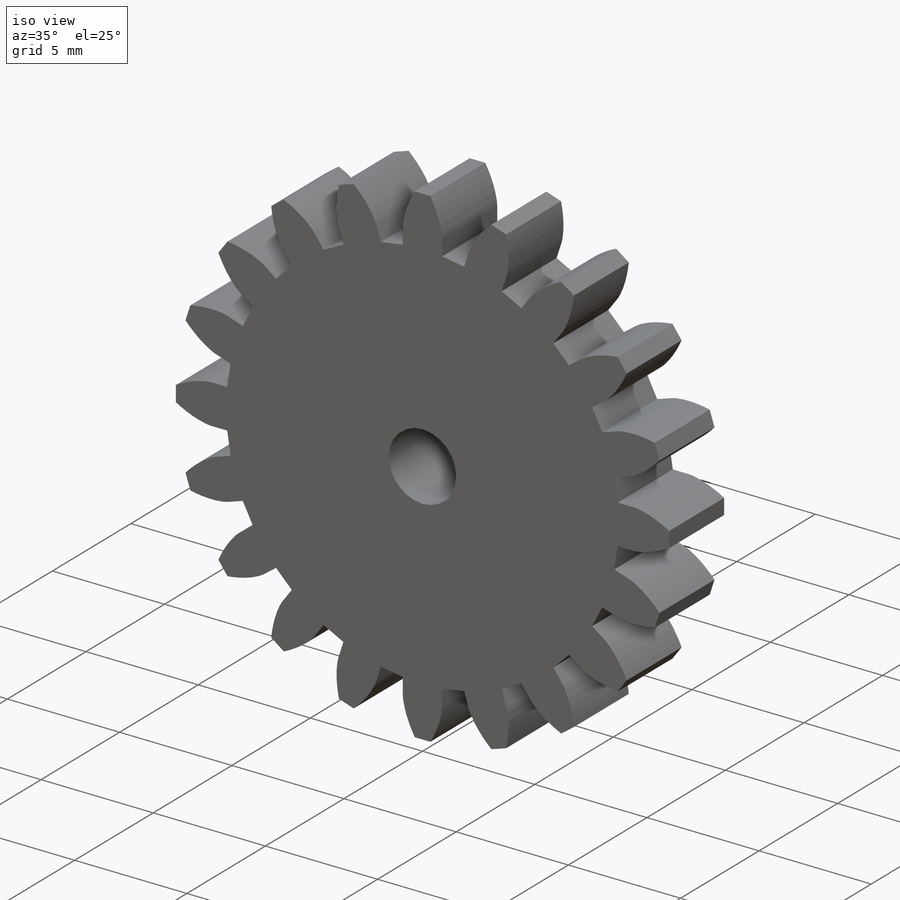
[diagram: iso view]
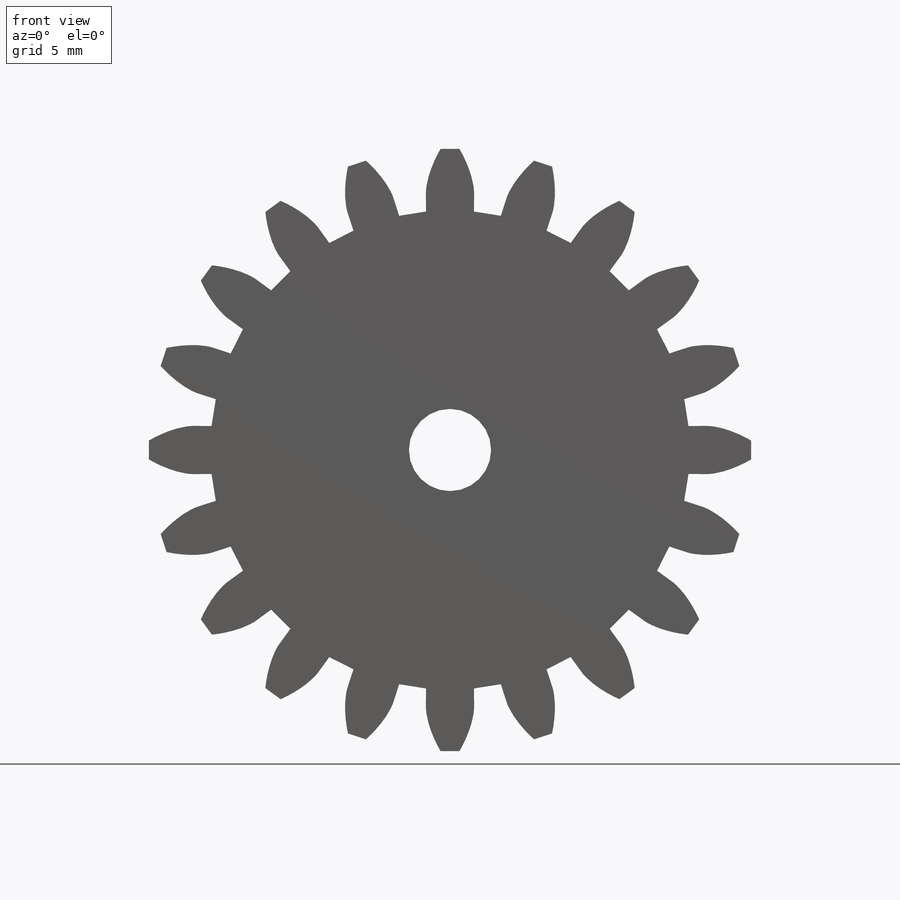
[diagram: front view]
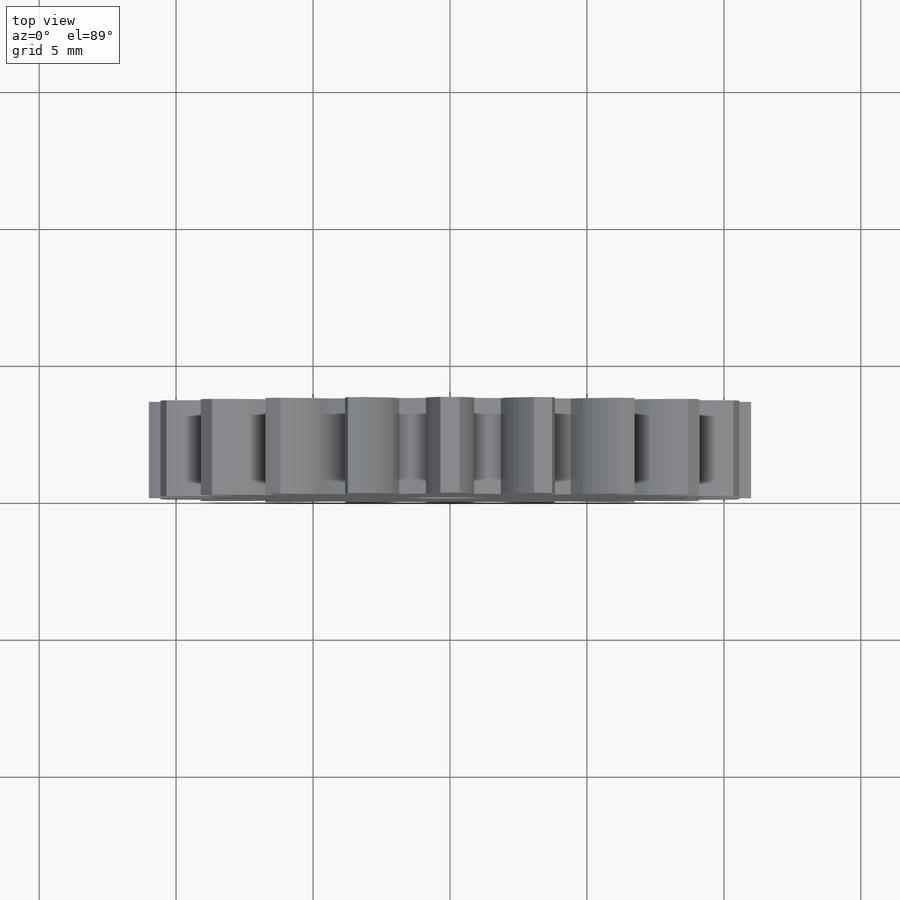
[diagram: top view]
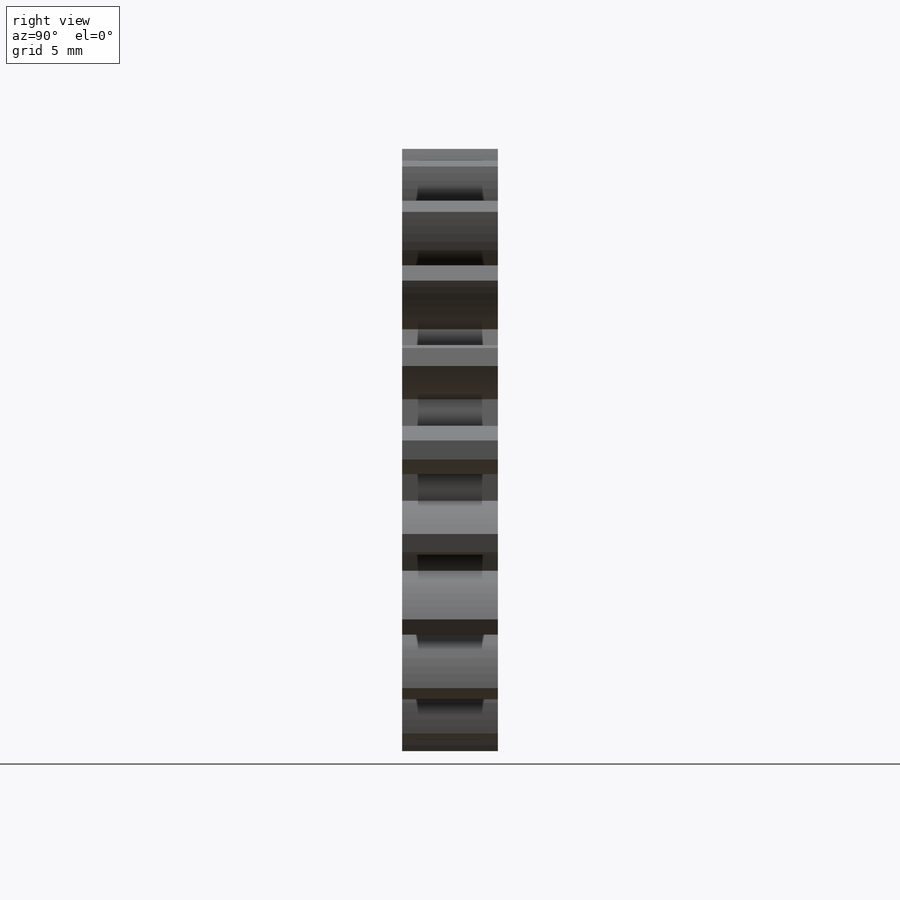
[diagram: right view]
SOLIDWORKS PART (.sldprt)
format: sldprt  version: not decoded by parser v0  size: 1,062,400 bytes
history: native  units: mm
features: extrude x404, sketch x403, material x1, plane x1 (+13 scaffold rows collapsed)
feature tree (822):
  scaffold x13  (default folders/planes/origin — collapsed)
  material  "Matériau <non spécifié>"
  plane  "Plan1"  Offset=10mm
  sketch  "Esquisse1"  dims[D1=~1.411727mm]
  extrude  "Boss.-Extru.1"  Depth=3.5mm flange_len_value=0
  extrude  "Associativity_IDs"  Depth=0 flange_len_value=0
  sketch  "13bbfd5e-1c11-48db-8718-c1169d628c41"
  extrude  "Associativity_IDs"  Depth=0 flange_len_value=0
  sketch  "54843a4e-a4ee-4462-ac54-c17025cd0bcd"
  extrude  "Associativity_IDs"  Depth=0 flange_len_value=0
  sketch  "c428674c-431b-4636-bc5d-d6e215f8b8be"
  extrude  "Associativity_IDs"  Depth=0 flange_len_value=0
  sketch  "61934696-606d-4d2c-a694-37e96e394700"
  extrude  "Associativity_IDs"  Depth=0 flange_len_value=0
  sketch  "9a402b78-d07b-43ad-a5d9-37352b821df1"
  extrude  "Associativity_IDs"  Depth=0 flange_len_value=0
  sketch  "4fa0fa68-a72b-4ed9-b020-85437230c592"
  extrude  "Associativity_IDs"  Depth=0 flange_len_value=0
  sketch  "2ccbed53-1972-4048-82f9-3eb8d1294805"
  extrude  "Associativity_IDs"  Depth=0 flange_len_value=0
  sketch  "2006a475-e6c8-4657-b828-d98f884e8f1a"
  extrude  "Associativity_IDs"  Depth=0 flange_len_value=0
  sketch  "390e4b35-3b0a-4961-8e1e-75f6a633a4c2"
  extrude  "Associativity_IDs"  Depth=0 flange_len_value=0
  sketch  "e2601f1a-ab28-4e0d-845e-cd70226b6478"
  extrude  "Associativity_IDs"  Depth=0 flange_len_value=0
  sketch  "31cf3b12-161c-4278-9735-86b6b50a0bc3"
  extrude  "Associativity_IDs"  Depth=0 flange_len_value=0
  sketch  "0d40f7db-7e08-4497-b2a4-90c7b92d5f4b"
  extrude  "Associativity_IDs"  Depth=0 flange_len_value=0
  sketch  "9fad24ba-4333-4fd7-aa1d-d40eca0dd601"
  extrude  "Associativity_IDs"  Depth=0 flange_len_value=0
  sketch  "5b74d7f9-2391-4663-bb7e-3f190af4a407"
  extrude  "Associativity_IDs"  Depth=0 flange_len_value=0
  sketch  "d1132328-059f-4d2f-ae51-18c9d13f0f56"
  extrude  "Associativity_IDs"  Depth=0 flange_len_value=0
  sketch  "74f930d1-b79d-489e-8cee-ef24b5be9e10"
  extrude  "Associativity_IDs"  Depth=0 flange_len_value=0
  sketch  "3770cc74-f9ef-4fb8-aa51-195a98be1d18"
  extrude  "Associativity_IDs"  Depth=0 flange_len_value=0
  sketch  "65fb81e8-5e94-4a8b-96c2-fe28cbc056b0"
  extrude  "Associativity_IDs"  Depth=0 flange_len_value=0
  sketch  "443fa2d3-6b46-4d5d-8011-d6a073cda6aa"
  extrude  "Associativity_IDs"  Depth=0 flange_len_value=0
  sketch  "80c3f443-d89e-479b-a112-7ea6c8e81a98"
  extrude  "Associativity_IDs"  Depth=0 flange_len_value=0
  sketch  "5f9c5b7b-5e79-4a73-bb68-b3a4ba7c9aa8"
  extrude  "Associativity_IDs"  Depth=0 flange_len_value=0
  sketch  "c0c77a51-e716-44fa-857a-7999544fc952"
  extrude  "Associativity_IDs"  Depth=0 flange_len_value=0
  sketch  "fb528331-1701-4a26-808d-e013704a3a03"
  extrude  "Associativity_IDs"  Depth=0 flange_len_value=0
  sketch  "b8583566-1acb-457a-b217-08901a0622e2"
  extrude  "Associativity_IDs"  Depth=0 flange_len_value=0
  sketch  "ca7a043a-130f-4d9b-bb3a-eff67f08fba7"
  extrude  "Associativity_IDs"  Depth=0 flange_len_value=0
  sketch  "128e19f4-7891-4e7b-980d-fa23868271dc"
  extrude  "Associativity_IDs"  Depth=0 flange_len_value=0
  sketch  "567f5583-8b94-45cb-94b6-b1453f7e88e4"
  extrude  "Associativity_IDs"  Depth=0 flange_len_value=0
  sketch  "21fc4a78-ca30-4545-86c6-ca785befb6d8"
  extrude  "Associativity_IDs"  Depth=0 flange_len_value=0
  sketch  "1d8a5f67-d9ef-44c7-bdc4-6580bfe56123"
  extrude  "Associativity_IDs"  Depth=0 flange_len_value=0
  sketch  "bd74414e-7255-4291-ae16-3037b33db959"
  extrude  "Associativity_IDs"  Depth=0 flange_len_value=0
  sketch  "b185f5cf-8d23-4686-b3cb-c78ee9cd1c8e"
  extrude  "Associativity_IDs"  Depth=0 flange_len_value=0
  sketch  "14f031cc-4b10-4389-a695-119ffb229a5d"
  extrude  "Associativity_IDs"  Depth=0 flange_len_value=0
  sketch  "7f53c3b7-2310-4031-8283-09fe5b6eb38d"
  extrude  "Associativity_IDs"  Depth=0 flange_len_value=0
  sketch  "9f361c8f-b567-4918-a093-dd841e98cb77"
  extrude  "Associativity_IDs"  Depth=0 flange_len_value=0
  sketch  "9bdad6c3-57ca-4a79-91c1-d036fb5aa1d5"
  extrude  "Associativity_IDs"  Depth=0 flange_len_value=0
  sketch  "e7cc4520-8017-4260-9284-a40a186c7c9d"
  extrude  "Associativity_IDs"  Depth=0 flange_len_value=0
  sketch  "7614929c-0179-4f60-94c4-f8c1b01e251c"
  extrude  "Associativity_IDs"  Depth=0 flange_len_value=0
  sketch  "04b82c00-530d-46ed-9c70-61cb452ceece"
  extrude  "Associativity_IDs"  Depth=0 flange_len_value=0
  sketch  "b9fe58a8-4e0c-4d21-9f91-59ce33ae0db9"
  extrude  "Associativity_IDs"  Depth=0 flange_len_value=0
  sketch  "2226aa6a-2db1-4148-affe-608344134f0a"
  extrude  "Associativity_IDs"  Depth=0 flange_len_value=0
  sketch  "40603316-857a-4821-b3e9-604746a215e4"
  extrude  "Associativity_IDs"  Depth=0 flange_len_value=0
  sketch  "869238ad-cbc1-4160-b578-5967dff6e92e"
  extrude  "Associativity_IDs"  Depth=0 flange_len_value=0
  sketch  "f72d0058-561f-4630-be80-ef5d83eb5c82"
  extrude  "Associativity_IDs"  Depth=0 flange_len_value=0
  sketch  "f3c8977c-7b07-4b28-b1c8-5306cc23b8ff"
  extrude  "Associativity_IDs"  Depth=0 flange_len_value=0
  sketch  "02060ea8-d797-4dd5-a156-c53dc0631bd7"
  extrude  "Associativity_IDs"  Depth=0 flange_len_value=0
  sketch  "75c880b2-f1d7-47bd-a8e1-1cd152465c6b"
  extrude  "Associativity_IDs"  Depth=0 flange_len_value=0
  sketch  "3a1e4f8a-6d50-425a-8b2e-8dc4230ccfa3"
  extrude  "Associativity_IDs"  Depth=0 flange_len_value=0
  sketch  "da325a01-0a72-427c-87f4-3e191b9fbf6a"
  extrude  "Associativity_IDs"  Depth=0 flange_len_value=0
  sketch  "9ccb399b-c086-4684-8f64-ac741b57f625"
  extrude  "Associativity_IDs"  Depth=0 flange_len_value=0
  sketch  "f0eb8b7b-d7da-4368-8b77-eb554a81c6a3"
  extrude  "Associativity_IDs"  Depth=0 flange_len_value=0
  sketch  "6748f85c-07fe-467b-aec7-041c1489ed51"
  extrude  "Associativity_IDs"  Depth=0 flange_len_value=0
  sketch  "e726c62f-8352-4fb2-a438-e02bf34169eb"
  extrude  "Associativity_IDs"  Depth=0 flange_len_value=0
  sketch  "adf0b155-c18f-4b0c-bb84-fdcec641aabc"
  extrude  "Associativity_IDs"  Depth=0 flange_len_value=0
  sketch  "9509f18d-a1a7-4cae-9622-ac0e9f269b9c"
  extrude  "Associativity_IDs"  Depth=0 flange_len_value=0
  sketch  "886a0c30-4ff6-44fb-a24b-66fcbdf866cb"
  extrude  "Associativity_IDs"  Depth=0 flange_len_value=0
  sketch  "59fc2e71-74c6-47e2-9891-6c9ba786784c"
  extrude  "Associativity_IDs"  Depth=0 flange_len_value=0
  sketch  "a57a9dbb-eb20-41cb-92c7-7b1aabf13602"
  extrude  "Associativity_IDs"  Depth=0 flange_len_value=0
  sketch  "2e67eae8-6c08-40ec-9072-8241424c93a5"
  extrude  "Associativity_IDs"  Depth=0 flange_len_value=0
  sketch  "d20805a7-5dc4-45d1-858d-49dc6495b3e7"
  extrude  "Associativity_IDs"  Depth=0 flange_len_value=0
  sketch  "b51fdf77-13db-44cc-b514-3f6eaadd06ae"
  extrude  "Associativity_IDs"  Depth=0 flange_len_value=0
  sketch  "5ae9d47f-2e01-429b-92e6-822714a03ce6"
  extrude  "Associativity_IDs"  Depth=0 flange_len_value=0
  sketch  "b852af76-6c05-4f41-b2b8-247c4e770056"
  extrude  "Associativity_IDs"  Depth=0 flange_len_value=0
  sketch  "a1190cab-cc4d-46b5-bb77-98ebfc1820b0"
  extrude  "Associativity_IDs"  Depth=0 flange_len_value=0
  sketch  "8368b22b-1381-45db-965a-c30bb0215107"
  extrude  "Associativity_IDs"  Depth=0 flange_len_value=0
  sketch  "09667097-dd84-4418-9303-39ba92a4a7d4"
  extrude  "Associativity_IDs"  Depth=0 flange_len_value=0
  sketch  "2752b990-15d4-4c57-8e7b-df8890272e97"
  extrude  "Associativity_IDs"  Depth=0 flange_len_value=0
  sketch  "1a481d65-f51e-4df3-bf60-9bae67cba510"
  extrude  "Associativity_IDs"  Depth=0 flange_len_value=0
  sketch  "ac7929ac-9a23-44f9-8e70-0cff7c1c4abe"
  extrude  "Associativity_IDs"  Depth=0 flange_len_value=0
  sketch  "95d60b06-e483-4041-a719-270af9fb80fd"
  extrude  "Associativity_IDs"  Depth=0 flange_len_value=0
  sketch  "2972bef5-7fce-40dc-af60-7a3cbf1c5cd8"
  extrude  "Associativity_IDs"  Depth=0 flange_len_value=0
  sketch  "deecd2e0-ce62-42ee-bd11-7743cb7fd468"
  extrude  "Associativity_IDs"  Depth=0 flange_len_value=0
  sketch  "28423f73-45ac-48c6-97e9-a69c50f25983"
  extrude  "Associativity_IDs"  Depth=0 flange_len_value=0
  sketch  "af0b67d2-4f93-4aaf-a2cf-7c397966a370"
  extrude  "Associativity_IDs"  Depth=0 flange_len_value=0
  sketch  "5f32a1a6-b4cf-43c0-8bfb-d1ef9458ab79"
  extrude  "Associativity_IDs"  Depth=0 flange_len_value=0
  sketch  "085342d1-e06c-4dce-84a2-395ca883fdae"
  extrude  "Associativity_IDs"  Depth=0 flange_len_value=0
  sketch  "30304cc2-a0a0-4446-8217-f6869271d9be"
  extrude  "Associativity_IDs"  Depth=0 flange_len_value=0
  sketch  "404a08cc-fc3f-46f0-90dc-acaa84c7e006"
  extrude  "Associativity_IDs"  Depth=0 flange_len_value=0
  sketch  "39dd0199-5000-4239-a6f7-8144b46573b1"
  extrude  "Associativity_IDs"  Depth=0 flange_len_value=0
  sketch  "c80aeb89-31a1-42fd-9c96-9b27ad7cd0e7"
  extrude  "Associativity_IDs"  Depth=0 flange_len_value=0
  sketch  "c1727292-ce8a-417b-968e-d15575c6cd6a"
  extrude  "Associativity_IDs"  Depth=0 flange_len_value=0
  sketch  "0377030b-7141-43a7-b3d3-a66a63aae028"
  extrude  "Associativity_IDs"  Depth=0 flange_len_value=0
  sketch  "d1fecf8b-98a9-4691-a399-6457c06ccc61"
  extrude  "Associativity_IDs"  Depth=0 flange_len_value=0
  sketch  "47a939ac-beb9-4eaa-9f5c-2c9dc74ebdc6"
  extrude  "Associativity_IDs"  Depth=0 flange_len_value=0
  sketch  "3c8d57a5-087f-488d-ab13-be084ec7630c"
  extrude  "Associativity_IDs"  Depth=0 flange_len_value=0
  sketch  "92383c12-da0f-4279-b547-dc5a0692ba63"
  extrude  "Associativity_IDs"  Depth=0 flange_len_value=0
  sketch  "e6bf6a43-e659-4317-af73-ed5da3d09b8f"
  extrude  "Associativity_IDs"  Depth=0 flange_len_value=0
  sketch  "7a78ca17-2998-4fc5-9d3e-3ceb6870701a"
  extrude  "Associativity_IDs"  Depth=0 flange_len_value=0
  sketch  "2871a1b6-a09b-432d-9cff-8ab6167d5893"
  extrude  "Associativity_IDs"  Depth=0 flange_len_value=0
  sketch  "e37605b2-6be1-4f6d-8770-653aae1dbfbd"
  extrude  "Associativity_IDs"  Depth=0 flange_len_value=0
  sketch  "95a6e20a-0f19-4b72-a5f6-3ce9f1ed01eb"
  extrude  "Associativity_IDs"  Depth=0 flange_len_value=0
  sketch  "bc845d8e-cd66-4eb9-8b79-a0767b665443"
  extrude  "Associativity_IDs"  Depth=0 flange_len_value=0
  sketch  "87afc9d4-5e97-40f6-91c4-d20492482601"
  extrude  "Associativity_IDs"  Depth=0 flange_len_value=0
  sketch  "5e4a5466-107d-4152-9b73-764478119abc"
  extrude  "Associativity_IDs"  Depth=0 flange_len_value=0
  sketch  "1040b12e-7723-4306-b61c-a6d0ff188b34"
  extrude  "Associativity_IDs"  Depth=0 flange_len_value=0
  sketch  "588b47fd-a4a1-47fe-a59a-cf2831546d66"
  extrude  "Associativity_IDs"  Depth=0 flange_len_value=0
  sketch  "246afd80-6786-436a-9c25-52bfe3730c97"
  extrude  "Associativity_IDs"  Depth=0 flange_len_value=0
  sketch  "13d67e29-97dc-4286-8372-8bef97ac1ae5"
  extrude  "Associativity_IDs"  Depth=0 flange_len_value=0
  sketch  "b0a6cc5d-09a9-4fc6-bde5-14439f8a8126"
  extrude  "Associativity_IDs"  Depth=0 flange_len_value=0
  sketch  "e3a0a4eb-2e6c-4541-9799-bf6f71a3e11b"
  extrude  "Associativity_IDs"  Depth=0 flange_len_value=0
  sketch  "b157a814-fe54-409d-8fe6-645fe4aab737"
  extrude  "Associativity_IDs"  Depth=0 flange_len_value=0
  sketch  "21fd3107-14bf-4171-a544-65bff5633e6b"
  extrude  "Associativity_IDs"  Depth=0 flange_len_value=0
  sketch  "c39f0877-7afa-4b2a-9699-7fb79a50f89b"
  extrude  "Associativity_IDs"  Depth=0 flange_len_value=0
  sketch  "683db9e5-c9d7-4712-b2de-0ddf33c721c4"
  extrude  "Associativity_IDs"  Depth=0 flange_len_value=0
  sketch  "4adb5f78-35b2-4b4c-9f99-684f10e44e89"
  extrude  "Associativity_IDs"  Depth=0 flange_len_value=0
  sketch  "db5ae26c-122b-4928-9a94-6996fe1fcdcd"
  extrude  "Associativity_IDs"  Depth=0 flange_len_value=0
  sketch  "ca0c82c2-78c4-431b-9c72-93072130bcdc"
  extrude  "Associativity_IDs"  Depth=0 flange_len_value=0
  sketch  "d2841bf6-23f4-41c3-8a3b-528290ce708b"
  extrude  "Associativity_IDs"  Depth=0 flange_len_value=0
  sketch  "0b15edc0-6b85-4090-80ae-9c75e6d4b823"
  extrude  "Associativity_IDs"  Depth=0 flange_len_value=0
  sketch  "2a5dcdff-79ba-4178-9169-0944900dd8bd"
  extrude  "Associativity_IDs"  Depth=0 flange_len_value=0
  sketch  "1a4cf7be-0301-4439-89d7-c4f0c709cf30"
  extrude  "Associativity_IDs"  Depth=0 flange_len_value=0
  sketch  "5809ba24-18f4-48ac-b003-6a67b45a8802"
  extrude  "Associativity_IDs"  Depth=0 flange_len_value=0
  sketch  "fcc17877-6a85-4b91-894c-e7a200327e9e"
  extrude  "Associativity_IDs"  Depth=0 flange_len_value=0
  sketch  "98a45cad-ff88-4aaa-8d6d-b5ef514be227"
  extrude  "Associativity_IDs"  Depth=0 flange_len_value=0
  sketch  "c891f8db-9d53-4d6e-b8bc-851c4c83c90a"
  extrude  "Associativity_IDs"  Depth=0 flange_len_value=0
  sketch  "f41632ce-0b52-43c0-b952-0530a40d5c95"
  extrude  "Associativity_IDs"  Depth=0 flange_len_value=0
  sketch  "0d6284e5-e6a2-4c9c-9df3-cfa69e90a16b"
  extrude  "Associativity_IDs"  Depth=0 flange_len_value=0
  sketch  "56ac1702-4682-426b-b137-3db46a4590da"
  extrude  "Associativity_IDs"  Depth=0 flange_len_value=0
  sketch  "390bb164-aa40-4cfc-9a13-6f20865258fc"
  extrude  "Associativity_IDs"  Depth=0 flange_len_value=0
  sketch  "c5cf8c12-49f2-423d-9e8e-0135d1ec1cc7"
  extrude  "Associativity_IDs"  Depth=0 flange_len_value=0
  sketch  "a0bdb193-aa38-42d8-b037-ab99227ebb81"
  extrude  "Associativity_IDs"  Depth=0 flange_len_value=0
  sketch  "c1f670e6-2869-4373-a7e0-bf9e4f36643e"
  extrude  "Associativity_IDs"  Depth=0 flange_len_value=0
  sketch  "4cba8258-bb2c-4904-83aa-a30266801a5f"
  extrude  "Associativity_IDs"  Depth=0 flange_len_value=0
  sketch  "ba71c5be-7075-434f-8e1c-102aa3972de5"
  extrude  "Associativity_IDs"  Depth=0 flange_len_value=0
  sketch  "90a8a39f-c8a8-4d53-a171-a511f778796d"
  extrude  "Associativity_IDs"  Depth=0 flange_len_value=0
  sketch  "84ef544b-ab82-44a8-8782-656ce1fa0262"
  extrude  "Associativity_IDs"  Depth=0 flange_len_value=0
  sketch  "adc4f310-8ddc-45c8-9fd4-7dd7ce50c8d9"
  extrude  "Associativity_IDs"  Depth=0 flange_len_value=0
  sketch  "7d03dc18-cc77-4dcd-a0a5-284783379cee"
  extrude  "Associativity_IDs"  Depth=0 flange_len_value=0
  sketch  "6df3e851-ccfa-4638-922a-c4f402dfbb58"
  extrude  "Associativity_IDs"  Depth=0 flange_len_value=0
  sketch  "8fde5954-d9b1-499c-b025-c5ca97c7f49b"
  extrude  "Associativity_IDs"  Depth=0 flange_len_value=0
  sketch  "de8ed576-839a-42f2-b684-d2c4a4b4ae9d"
  extrude  "Associativity_IDs"  Depth=0 flange_len_value=0
  sketch  "fb2d7013-1dcb-4ed6-8f2b-be93e11e504f"
  extrude  "Associativity_IDs"  Depth=0 flange_len_value=0
  sketch  "2c2ad079-68b0-470b-8a48-e29f7536bddf"
  extrude  "Associativity_IDs"  Depth=0 flange_len_value=0
  sketch  "157b9c0e-0772-4cb0-a299-3dfbc8c53e08"
  extrude  "Associativity_IDs"  Depth=0 flange_len_value=0
  sketch  "df09da99-40e6-4e78-9f0d-4dec78924127"
  extrude  "Associativity_IDs"  Depth=0 flange_len_value=0
  sketch  "d36342f3-60da-4a32-bb24-1b669f65f3a8"
  extrude  "Associativity_IDs"  Depth=0 flange_len_value=0
  sketch  "f12f2cd9-a26b-47b6-87bf-de05bca9ac81"
  extrude  "Associativity_IDs"  Depth=0 flange_len_value=0
  sketch  "0fa2a451-da85-4ac5-b453-df22c7fe1ebb"
  extrude  "Associativity_IDs"  Depth=0 flange_len_value=0
  sketch  "f48c41e9-9787-429f-856b-55749375deda"
  extrude  "Associativity_IDs"  Depth=0 flange_len_value=0
  sketch  "fec7c54a-7720-4b0a-8649-633334c33206"
  extrude  "Associativity_IDs"  Depth=0 flange_len_value=0
  sketch  "a9d6b662-6262-4a37-b70e-a452f0472a14"
  extrude  "Associativity_IDs"  Depth=0 flange_len_value=0
  sketch  "b0e5e479-20ba-4340-b0c4-eb6310732ae6"
  extrude  "Associativity_IDs"  Depth=0 flange_len_value=0
  sketch  "40d3ec11-5257-4972-ba9a-944891b213b7"
  extrude  "Associativity_IDs"  Depth=0 flange_len_value=0
  sketch  "62a14a11-98a3-4c0c-998c-554dcc35a136"
  extrude  "Associativity_IDs"  Depth=0 flange_len_value=0
  sketch  "49eb0462-568b-4d36-8cd2-3302b1a7bafe"
  extrude  "Associativity_IDs"  Depth=0 flange_len_value=0
  sketch  "f354510a-2dd4-4429-acbf-913a4fc6c8aa"
  extrude  "Associativity_IDs"  Depth=0 flange_len_value=0
  sketch  "b1e363d8-c2d9-468e-acd3-aed4a464cb3d"
  extrude  "Associativity_IDs"  Depth=0 flange_len_value=0
  sketch  "f4d72384-5d58-4252-95c0-baa647a4fadd"
  extrude  "Associativity_IDs"  Depth=0 flange_len_value=0
  sketch  "227e4169-d54f-48fb-bdf4-17325315aa96"
  extrude  "Associativity_IDs"  Depth=0 flange_len_value=0
  sketch  "ede742eb-547b-4bce-90e9-20c470e614b1"
  extrude  "Associativity_IDs"  Depth=0 flange_len_value=0
  sketch  "e8c2fdd0-91e9-48d3-b401-71abc8cea4d2"
  extrude  "Associativity_IDs"  Depth=0 flange_len_value=0
  sketch  "362ff95b-0e27-4082-8a82-fbcfa834db38"
  extrude  "Associativity_IDs"  Depth=0 flange_len_value=0
  sketch  "1ce4a428-45a6-4fa2-96de-48870f0c16fe"
  extrude  "Associativity_IDs"  Depth=0 flange_len_value=0
  sketch  "361191d8-d7bf-467d-b63e-7d49e591adcf"
  extrude  "Associativity_IDs"  Depth=0 flange_len_value=0
  sketch  "c095669d-0a95-4a17-98b4-e89e17a1f963"
  extrude  "Associativity_IDs"  Depth=0 flange_len_value=0
  sketch  "657d9788-8e3f-45b5-8471-72f2ab288839"
  extrude  "Associativity_IDs"  Depth=0 flange_len_value=0
  sketch  "ed63c311-fc88-40a5-95fe-b074a39c3560"
  extrude  "Associativity_IDs"  Depth=0 flange_len_value=0
  sketch  "de6314dd-733b-45b2-b1bc-0652a701f1e7"
  extrude  "Associativity_IDs"  Depth=0 flange_len_value=0
  sketch  "c8d7496b-ccf1-47b0-93e7-d9bd70695eed"
  extrude  "Associativity_IDs"  Depth=0 flange_len_value=0
  sketch  "492feb47-b700-4941-948d-ca943e264170"
  extrude  "Associativity_IDs"  Depth=0 flange_len_value=0
  sketch  "6eea0d81-ee12-48b3-84d0-89519a3702d0"
  extrude  "Associativity_IDs"  Depth=0 flange_len_value=0
  sketch  "c80faa77-da46-4e2e-8e86-3a270b1a9486"
  extrude  "Associativity_IDs"  Depth=0 flange_len_value=0
  sketch  "6fa20124-347e-4e46-8467-1e4e1a067e61"
  extrude  "Associativity_IDs"  Depth=0 flange_len_value=0
  sketch  "b708db0b-a237-4992-a8f2-8696752d370c"
  extrude  "Associativity_IDs"  Depth=0 flange_len_value=0
  sketch  "209b2fc9-12a3-4a95-a596-d8a52d7f1898"
  extrude  "Associativity_IDs"  Depth=0 flange_len_value=0
  sketch  "fa132fbe-cea7-4ae7-838f-a72095247370"
  extrude  "Associativity_IDs"  Depth=0 flange_len_value=0
  sketch  "a85ab6e2-e524-40eb-888a-e8b537130ffa"
  extrude  "Associativity_IDs"  Depth=0 flange_len_value=0
  sketch  "d28d1997-fbb0-46c1-b20b-086517d46671"
  extrude  "Associativity_IDs"  Depth=0 flange_len_value=0
  sketch  "66136db7-7a29-4c41-a6a2-4fed72d3467f"
  extrude  "Associativity_IDs"  Depth=0 flange_len_value=0
  sketch  "7659ecce-0442-4626-b7fb-773b3b5300a2"
  extrude  "Associativity_IDs"  Depth=0 flange_len_value=0
  sketch  "4206a055-4587-438e-8a09-e7034ed5e4f7"
  extrude  "Associativity_IDs"  Depth=0 flange_len_value=0
  sketch  "d1b58599-5e35-43f1-9334-4c181c6f528f"
  extrude  "Associativity_IDs"  Depth=0 flange_len_value=0
  sketch  "e5dcdce7-8836-4c54-8266-51d79b76fd2e"
  extrude  "Associativity_IDs"  Depth=0 flange_len_value=0
  sketch  "79d52816-b6cc-4d0e-be0d-641bdcebaf55"
  extrude  "Associativity_IDs"  Depth=0 flange_len_value=0
  sketch  "a38eb546-152c-487f-94cf-37588815d74a"
  extrude  "Associativity_IDs"  Depth=0 flange_len_value=0
  sketch  "01723922-f185-4c18-88dd-7a607cc90bcc"
  extrude  "Associativity_IDs"  Depth=0 flange_len_value=0
  sketch  "aac79258-807e-47fc-b764-618c4d633e84"
  extrude  "Associativity_IDs"  Depth=0 flange_len_value=0
  sketch  "617796e1-2f19-4dd1-ac92-5a44786957f5"
  extrude  "Associativity_IDs"  Depth=0 flange_len_value=0
  sketch  "acbb7d85-1ab0-4a2f-b4dc-f5b11c57c3aa"
  extrude  "Associativity_IDs"  Depth=0 flange_len_value=0
  sketch  "68c1893c-3419-4c22-b796-0e0c3794f4db"
  extrude  "Associativity_IDs"  Depth=0 flange_len_value=0
  sketch  "66686deb-324c-470b-9959-7abc4ee96e53"
  extrude  "Associativity_IDs"  Depth=0 flange_len_value=0
  sketch  "d347e5d4-647b-4803-9fcf-dfc3b3b78da3"
  extrude  "Associativity_IDs"  Depth=0 flange_len_value=0
  sketch  "7bdbec13-14c5-461f-97c4-91db60dd7eb3"
  extrude  "Associativity_IDs"  Depth=0 flange_len_value=0
  sketch  "6ec812e8-1586-457b-8021-0a78bbcdbeaf"
  extrude  "Associativity_IDs"  Depth=0 flange_len_value=0
  sketch  "9d554461-5023-4216-be6a-5ce003292b56"
  extrude  "Associativity_IDs"  Depth=0 flange_len_value=0
  sketch  "3b9e8c65-4669-44f3-b08f-6ed24ffecd32"
  extrude  "Associativity_IDs"  Depth=0 flange_len_value=0
  sketch  "2a8dff92-7c88-4317-bd3c-8a3bcd2a8c0a"
  extrude  "Associativity_IDs"  Depth=0 flange_len_value=0
  sketch  "f8228783-e10f-4862-85fb-f2198046b9b9"
  extrude  "Associativity_IDs"  Depth=0 flange_len_value=0
  sketch  "6e8ba274-c0e6-45b0-a6ac-13b5cc3c11c5"
  extrude  "Associativity_IDs"  Depth=0 flange_len_value=0
  sketch  "9dcdeb0a-a518-4157-895b-5ed243822702"
  extrude  "Associativity_IDs"  Depth=0 flange_len_value=0
  sketch  "1d7b6d60-ec4b-4262-95b5-cfb621f57034"
  extrude  "Associativity_IDs"  Depth=0 flange_len_value=0
  sketch  "0238d686-9a0e-4879-ad4c-385f11036f9a"
  extrude  "Associativity_IDs"  Depth=0 flange_len_value=0
  sketch  "b779e963-ba10-419e-87d3-b039d1614431"
  extrude  "Associativity_IDs"  Depth=0 flange_len_value=0
  sketch  "9258934f-19d3-4465-a5ca-fd7d30255fd4"
  extrude  "Associativity_IDs"  Depth=0 flange_len_value=0
  sketch  "395c5d90-8373-4b81-8b4a-053255d491b3"
  extrude  "Associativity_IDs"  Depth=0 flange_len_value=0
  sketch  "4ed72fe8-c02a-4b14-bacb-6c9b1d25749e"
  extrude  "Associativity_IDs"  Depth=0 flange_len_value=0
  sketch  "02a90a86-a43e-4dd0-bd6d-c462a77a7ffc"
  extrude  "Associativity_IDs"  Depth=0 flange_len_value=0
  sketch  "c961d56f-897e-4bda-bdc6-c011f54d3a6d"
  extrude  "Associativity_IDs"  Depth=0 flange_len_value=0
  sketch  "e19c2904-154b-4119-ae78-4a5c937aa41b"
  extrude  "Associativity_IDs"  Depth=0 flange_len_value=0
  sketch  "4ed53e45-1a5b-48fe-a3ba-c5b1ae4aaed4"
  extrude  "Associativity_IDs"  Depth=0 flange_len_value=0
  sketch  "e6574a88-ceed-4a24-b2b5-e2a67102542c"
  extrude  "Associativity_IDs"  Depth=0 flange_len_value=0
  sketch  "68e7ba51-0a75-485a-bb0b-ead7988deabe"
  extrude  "Associativity_IDs"  Depth=0 flange_len_value=0
  sketch  "c70b64dd-e4e8-4d28-b02c-ee15dba12ead"
  extrude  "Associativity_IDs"  Depth=0 flange_len_value=0
  sketch  "2406a9c7-4dac-4d5b-b04d-cd188cab344b"
  extrude  "Associativity_IDs"  Depth=0 flange_len_value=0
  sketch  "952aa416-9a1f-4c9f-b65a-315c7a911e0c"
  extrude  "Associativity_IDs"  Depth=0 flange_len_value=0
  sketch  "3455c0c8-4155-4c8d-b328-f2d8cebd03e9"
  extrude  "Associativity_IDs"  Depth=0 flange_len_value=0
  sketch  "17c6cf8c-d3ec-439c-bac6-3b0084ae6c37"
  extrude  "Associativity_IDs"  Depth=0 flange_len_value=0
  sketch  "45fd3642-a877-4255-88f1-3d3b9be4b2a9"
  extrude  "Associativity_IDs"  Depth=0 flange_len_value=0
  sketch  "2aa8eb41-f15f-46d3-b231-3849d8dfe837"
  extrude  "Associativity_IDs"  Depth=0 flange_len_value=0
  sketch  "51b92f0f-5ceb-415f-b7a8-5ca87b7f433c"
  extrude  "Associativity_IDs"  Depth=0 flange_len_value=0
  sketch  "63e5fe05-e8b6-48cd-9573-9f040ffe5db6"
  extrude  "Associativity_IDs"  Depth=0 flange_len_value=0
  sketch  "7198e7a9-df64-418d-bc22-33c4594d0a77"
  extrude  "Associativity_IDs"  Depth=0 flange_len_value=0
  sketch  "09381090-500f-4737-aadd-ec7f73590803"
  extrude  "Associativity_IDs"  Depth=0 flange_len_value=0
  sketch  "95d7ec6c-3eb2-42d0-a78b-6811e7fceb3d"
  extrude  "Associativity_IDs"  Depth=0 flange_len_value=0
  sketch  "c01a2a18-4106-4f4c-9e08-23fc161d5b0e"
  extrude  "Associativity_IDs"  Depth=0 flange_len_value=0
  sketch  "3bb51986-0f6b-4d21-b5fe-ff0d4ba19a3e"
  extrude  "Associativity_IDs"  Depth=0 flange_len_value=0
  sketch  "a4e48260-7dc4-464e-ba53-dab83ef0bf85"
  extrude  "Associativity_IDs"  Depth=0 flange_len_value=0
  sketch  "cf29b0a0-b9ef-448c-8002-01fca0d4c65a"
  extrude  "Associativity_IDs"  Depth=0 flange_len_value=0
  sketch  "732ff070-8d41-4f9d-957c-4dd91e4747aa"
  extrude  "Associativity_IDs"  Depth=0 flange_len_value=0
  sketch  "d7fc5871-669f-4115-ae6b-0bfd71726f12"
  extrude  "Associativity_IDs"  Depth=0 flange_len_value=0
  sketch  "e587ba20-6e5d-4cba-897e-63b92559aeff"
  extrude  "Associativity_IDs"  Depth=0 flange_len_value=0
  sketch  "f7f3f19d-f700-4184-b78f-8851ad558636"
  extrude  "Associativity_IDs"  Depth=0 flange_len_value=0
  sketch  "65b77d82-b0c6-4ed6-bd08-40033caba849"
  extrude  "Associativity_IDs"  Depth=0 flange_len_value=0
  sketch  "4e8af007-58c6-49cf-baf2-c8f46dc7637d"
  extrude  "Associativity_IDs"  Depth=0 flange_len_value=0
  sketch  "444be792-4ae0-458a-a31a-b78c03ae5b3b"
  extrude  "Associativity_IDs"  Depth=0 flange_len_value=0
  sketch  "7b3450ae-0697-4f42-8acf-e5614dcb12b0"
  extrude  "Associativity_IDs"  Depth=0 flange_len_value=0
  sketch  "4d993bb4-6209-45e3-a447-ab04e17b5173"
  extrude  "Associativity_IDs"  Depth=0 flange_len_value=0
  sketch  "2311a2da-27b0-4431-ab08-568d0900eb14"
  extrude  "Associativity_IDs"  Depth=0 flange_len_value=0
  sketch  "fd1ee1bd-cfae-4629-90fd-651d592cc385"
  extrude  "Associativity_IDs"  Depth=0 flange_len_value=0
  sketch  "d036e9f9-c490-4ee2-95dd-ab3f7ceeb758"
  extrude  "Associativity_IDs"  Depth=0 flange_len_value=0
  sketch  "65f1aec0-8f1d-41c7-949a-475141323fda"
  extrude  "Associativity_IDs"  Depth=0 flange_len_value=0
  sketch  "36c312f4-9fd3-4076-b207-0a0f8ea4176a"
  extrude  "Associativity_IDs"  Depth=0 flange_len_value=0
  sketch  "202b96ef-5422-4325-a2f9-a0d66ecf2e77"
  extrude  "Associativity_IDs"  Depth=0 flange_len_value=0
  sketch  "eb8281f5-a8b4-47e2-9efe-fcea2a72d543"
  extrude  "Associativity_IDs"  Depth=0 flange_len_value=0
  sketch  "259b775a-d0d8-41b1-9cca-3462232fd40e"
  extrude  "Associativity_IDs"  Depth=0 flange_len_value=0
  sketch  "b528d639-cbfb-4389-acc1-1a4cf4daa4c7"
  extrude  "Associativity_IDs"  Depth=0 flange_len_value=0
  sketch  "8097b437-d430-4665-b823-f36ea51282a3"
  extrude  "Associativity_IDs"  Depth=0 flange_len_value=0
  sketch  "05f13487-fd7a-45b6-890e-900b73b271a3"
  extrude  "Associativity_IDs"  Depth=0 flange_len_value=0
  sketch  "e7ce57f4-c665-4dec-9f6c-509c3c583986"
  extrude  "Associativity_IDs"  Depth=0 flange_len_value=0
  sketch  "91285c7b-13db-422e-8e60-a9f5d94e63d7"
  extrude  "Associativity_IDs"  Depth=0 flange_len_value=0
  sketch  "4454a95d-d446-4584-98e8-d66c7c4f1710"
  extrude  "Associativity_IDs"  Depth=0 flange_len_value=0
  sketch  "8cc85db7-a0d4-4b55-96db-d6470fc6445f"
  extrude  "Associativity_IDs"  Depth=0 flange_len_value=0
  sketch  "1ddf0816-98fa-4b44-b9f9-a8356e7330c5"
  extrude  "Associativity_IDs"  Depth=0 flange_len_value=0
  sketch  "f3fdddf3-5e7b-40c9-9e92-580154dca68d"
  extrude  "Associativity_IDs"  Depth=0 flange_len_value=0
  sketch  "87a21f6c-0f84-4344-a0f7-728407a366ba"
  extrude  "Associativity_IDs"  Depth=0 flange_len_value=0
  sketch  "7a978839-2135-4ef7-93ae-41f571ad9911"
  extrude  "Associativity_IDs"  Depth=0 flange_len_value=0
  sketch  "c5515f1c-484e-4150-91aa-1ed2a0ad721c"
  extrude  "Associativity_IDs"  Depth=0 flange_len_value=0
  sketch  "4c8916c9-f3ca-45e3-923d-1d21822795c8"
  extrude  "Associativity_IDs"  Depth=0 flange_len_value=0
  sketch  "c3d381fc-2cd7-460e-b745-c8477e35b5c4"
  extrude  "Associativity_IDs"  Depth=0 flange_len_value=0
  sketch  "e1eea2c1-d662-4827-b6c9-6bf7aff5133b"
  extrude  "Associativity_IDs"  Depth=0 flange_len_value=0
  sketch  "929f5ba0-022f-4ed9-afe9-2f92e0e74eef"
  extrude  "Associativity_IDs"  Depth=0 flange_len_value=0
  sketch  "c23b7672-486b-495b-ab49-dbd9fe5872b0"
  extrude  "Associativity_IDs"  Depth=0 flange_len_value=0
  sketch  "48f66095-4e8b-48c0-82fd-bf09971bc7cc"
  extrude  "Associativity_IDs"  Depth=0 flange_len_value=0
  sketch  "9af9c49e-cb8b-48ee-8df6-011d91fbe1af"
  extrude  "Associativity_IDs"  Depth=0 flange_len_value=0
  sketch  "cd106916-f8cb-4253-ba3a-bca7a5e51fca"
  extrude  "Associativity_IDs"  Depth=0 flange_len_value=0
  sketch  "0dee1b66-4ee9-4601-901a-bc6860645f47"
  extrude  "Associativity_IDs"  Depth=0 flange_len_value=0
  sketch  "5b09ad23-62f9-4a25-9812-8b162d825887"
  extrude  "Associativity_IDs"  Depth=0 flange_len_value=0
  sketch  "2186fb74-029f-4525-ac1b-b1a2a2d7cb88"
  extrude  "Associativity_IDs"  Depth=0 flange_len_value=0
  sketch  "c3f844a8-bd64-447f-9705-d9fdfa90c1e8"
  extrude  "Associativity_IDs"  Depth=0 flange_len_value=0
  sketch  "f3f10c70-54d9-443d-ab38-f3b1b9290d0f"
  extrude  "Associativity_IDs"  Depth=0 flange_len_value=0
  sketch  "4c6e505d-31cc-4b4e-babd-d5d91fd51d82"
  extrude  "Associativity_IDs"  Depth=0 flange_len_value=0
  sketch  "e2cc0ec5-e29a-486d-959c-076e09c2c279"
  extrude  "Associativity_IDs"  Depth=0 flange_len_value=0
  sketch  "6051a647-b5c7-4f86-940d-8dde1870eae5"
  extrude  "Associativity_IDs"  Depth=0 flange_len_value=0
  sketch  "17093964-f340-4c32-b69f-d0cb8f64a5b7"
  extrude  "Associativity_IDs"  Depth=0 flange_len_value=0
  sketch  "29307f06-3fd4-4931-9ddf-91fffcf446f2"
  extrude  "Associativity_IDs"  Depth=0 flange_len_value=0
  sketch  "e5cc5988-c7cd-4ddb-8eb5-6715a5fbe185"
  extrude  "Associativity_IDs"  Depth=0 flange_len_value=0
  sketch  "438f6483-65c6-40ce-8ba0-652dfdfb6777"
  extrude  "Associativity_IDs"  Depth=0 flange_len_value=0
  sketch  "b756cbe4-52dd-4a71-8210-28840c691d04"
  extrude  "Associativity_IDs"  Depth=0 flange_len_value=0
  sketch  "420a3068-80a4-4cd7-8b7e-43c81a6a6e8b"
  extrude  "Associativity_IDs"  Depth=0 flange_len_value=0
  sketch  "67e260fa-969e-48a6-8835-f627a47f03a3"
  extrude  "Associativity_IDs"  Depth=0 flange_len_value=0
  sketch  "a5c0a500-d4e6-4e8c-8fd9-842578dc5637"
  extrude  "Associativity_IDs"  Depth=0 flange_len_value=0
  sketch  "fee5ab75-cbfd-4c6b-98d9-43327895291c"
  extrude  "Associativity_IDs"  Depth=0 flange_len_value=0
  sketch  "5c191bf5-1a2c-4fe0-82e0-b4f061728953"
  extrude  "Associativity_IDs"  Depth=0 flange_len_value=0
  sketch  "17404984-839d-45db-9b37-7d1983009834"
  extrude  "Associativity_IDs"  Depth=0 flange_len_value=0
  sketch  "474c31f2-9eae-43cd-b876-fdee45c81fc6"
  extrude  "Associativity_IDs"  Depth=0 flange_len_value=0
  sketch  "ed64bae4-9cdd-4402-bb9d-002411339b01"
  extrude  "Associativity_IDs"  Depth=0 flange_len_value=0
  sketch  "8ccafbf0-d6ce-444e-8fe1-f95e96863e6f"
  extrude  "Associativity_IDs"  Depth=0 flange_len_value=0
  sketch  "527eb516-8cd1-4570-9463-f1ca03acf043"
  extrude  "Associativity_IDs"  Depth=0 flange_len_value=0
  sketch  "38b1f6e7-d74c-4b22-8e46-5fc8bf0428ea"
  extrude  "Associativity_IDs"  Depth=0 flange_len_value=0
  sketch  "251bfd6d-7b35-4ac4-8b06-85dff880dc3f"
  extrude  "Associativity_IDs"  Depth=0 flange_len_value=0
  sketch  "b291b05f-170e-4e6d-90ca-47fa6c1f2abe"
  extrude  "Associativity_IDs"  Depth=0 flange_len_value=0
  sketch  "4d71feff-69fd-4e45-a08f-a098a1081824"
  extrude  "Associativity_IDs"  Depth=0 flange_len_value=0
  sketch  "73bbaa10-d4dd-487c-bc5e-ee7c8e0b55da"
  extrude  "Associativity_IDs"  Depth=0 flange_len_value=0
  sketch  "c4cf5cc2-2985-4b47-9724-0593d0155a16"
  extrude  "Associativity_IDs"  Depth=0 flange_len_value=0
  sketch  "cfb1e6d5-5676-44c1-9286-30ae170c9fb7"
  extrude  "Associativity_IDs"  Depth=0 flange_len_value=0
  sketch  "fce71433-25e3-4e3d-ba14-018cbedf5666"
  extrude  "Associativity_IDs"  Depth=0 flange_len_value=0
  sketch  "fe07d803-096b-4d43-a349-0755410186a1"
  extrude  "Associativity_IDs"  Depth=0 flange_len_value=0
  sketch  "39726d43-ea48-4b51-8bb0-dea8232eba74"
  extrude  "Associativity_IDs"  Depth=0 flange_len_value=0
  sketch  "091f7ae6-b869-4910-8642-5ba7ecd6a7b2"
  extrude  "Associativity_IDs"  Depth=0 flange_len_value=0
  sketch  "f5e437fb-49e0-427d-8241-78d28abe3cc2"
  extrude  "Associativity_IDs"  Depth=0 flange_len_value=0
  sketch  "3d5937e4-d3af-4070-8edf-a3801cfdfe16"
  extrude  "Associativity_IDs"  Depth=0 flange_len_value=0
  sketch  "93148e86-85c3-40b6-808d-7ed99c01526a"
  extrude  "Associativity_IDs"  Depth=0 flange_len_value=0
  sketch  "faf6fc14-d3f2-49f8-a95e-f27e59a471ee"
  extrude  "Associativity_IDs"  Depth=0 flange_len_value=0
  sketch  "5315c2f1-e499-4911-8b2c-bb51b2f47d0e"
  extrude  "Associativity_IDs"  Depth=0 flange_len_value=0
  sketch  "76b368d3-f524-4da7-a416-787ff3a9099a"
  extrude  "Associativity_IDs"  Depth=0 flange_len_value=0
  sketch  "801d257c-0555-467f-8229-507380cc36ad"
  extrude  "Associativity_IDs"  Depth=0 flange_len_value=0
  sketch  "914a4e1e-649b-4b54-834a-f8b6d6501d39"
  extrude  "Associativity_IDs"  Depth=0 flange_len_value=0
  sketch  "f8eb4927-fa00-4fa5-9b2f-329b0d7c8b08"
  extrude  "Associativity_IDs"  Depth=0 flange_len_value=0
  sketch  "e1830abf-9627-4c98-ade3-4f28ecb73b44"
  extrude  "Associativity_IDs"  Depth=0 flange_len_value=0
  sketch  "9e7a372c-7853-4975-b388-2fa93d4a47ca"
  extrude  "Associativity_IDs"  Depth=0 flange_len_value=0
  sketch  "d48a0d38-cd63-4e74-8baa-a8420f860d64"
  extrude  "Associativity_IDs"  Depth=0 flange_len_value=0
  sketch  "29767f65-056d-463c-a9a6-743117cf3184"
  extrude  "Associativity_IDs"  Depth=0 flange_len_value=0
  sketch  "3dade3c4-360c-410e-97ac-b9a8650b0d00"
  extrude  "Associativity_IDs"  Depth=0 flange_len_value=0
  sketch  "f30039f3-f70c-4189-b3e1-8477e5e2b657"
  extrude  "Associativity_IDs"  Depth=0 flange_len_value=0
  sketch  "a84bbecc-7928-4510-a207-c9b05660a66c"
  extrude  "Associativity_IDs"  Depth=0 flange_len_value=0
  sketch  "aec4f640-9647-413c-8934-c147030fa9d3"
  extrude  "Associativity_IDs"  Depth=0 flange_len_value=0
  sketch  "0a613998-6aa1-4b0b-976f-596ad41dcb82"
  extrude  "Associativity_IDs"  Depth=0 flange_len_value=0
  sketch  "015d8692-d339-4edd-8a6d-66dfdb3d30a2"
  extrude  "Associativity_IDs"  Depth=0 flange_len_value=0
  sketch  "ab24181c-cc4e-41bc-bd5b-14630b9b503f"
  extrude  "Associativity_IDs"  Depth=0 flange_len_value=0
  sketch  "07059e88-46b4-42d6-9ba4-6251e2dc7c13"
  extrude  "Associativity_IDs"  Depth=0 flange_len_value=0
  sketch  "18efea2c-db19-4bd1-ae15-521d564dd6a9"
  extrude  "Associativity_IDs"  Depth=0 flange_len_value=0
  sketch  "6d10f99a-c8e9-4405-be4a-8613d4ba00a8"
  extrude  "Associativity_IDs"  Depth=0 flange_len_value=0
  sketch  "3ef158b7-420e-4fd6-a7f8-14a919e46927"
  extrude  "Associativity_IDs"  Depth=0 flange_len_value=0
  sketch  "3df6cd3d-5d37-4581-8ff2-556e63ec0856"
  extrude  "Associativity_IDs"  Depth=0 flange_len_value=0
  sketch  "1e1de7da-5a7f-4814-8a02-9c3aeb0d8c08"
  extrude  "Associativity_IDs"  Depth=0 flange_len_value=0
  sketch  "9d9a4399-df62-4d39-ad48-e072ca1b88b9"
  extrude  "Associativity_IDs"  Depth=0 flange_len_value=0
  sketch  "0137c1b5-ef84-4296-b5a7-e69402b3814d"
  extrude  "Associativity_IDs"  Depth=0 flange_len_value=0
  sketch  "5699a879-a93b-453a-96b0-66705fc5efda"
  extrude  "Associativity_IDs"  Depth=0 flange_len_value=0
  sketch  "ab1a4498-d550-4e9d-a00c-13422a555087"
  extrude  "Associativity_IDs"  Depth=0 flange_len_value=0
  sketch  "ca33f23d-8fdf-43bc-b371-7c812c3b44db"
  extrude  "Associativity_IDs"  Depth=0 flange_len_value=0
  sketch  "332e024a-b578-4f31-897a-ede06d8b1c51"
  extrude  "Associativity_IDs"  Depth=0 flange_len_value=0
  sketch  "c12b70e8-6e8c-49c5-a909-4445cc9c104b"
  extrude  "Associativity_IDs"  Depth=0 flange_len_value=0
  sketch  "e839ba10-2817-4fb9-ba6a-1a7016190dc0"
  extrude  "Associativity_IDs"  Depth=0 flange_len_value=0
  sketch  "40bbf043-2195-4078-a636-2a6eb215f664"
  extrude  "Associativity_IDs"  Depth=0 flange_len_value=0
  sketch  "81bcbeb0-1759-479d-9c1f-6d00953ec34b"
  extrude  "Associativity_IDs"  Depth=0 flange_len_value=0
  sketch  "3f2501f9-6f3f-4a6d-a8a9-3c89ca9d2d01"
  extrude  "Associativity_IDs"  Depth=0 flange_len_value=0
  sketch  "bcfe4786-9e16-4c42-a078-366359ef7623"
  extrude  "Associativity_IDs"  Depth=0 flange_len_value=0
  sketch  "b58585e8-c23e-4f04-88bb-1babb1051997"
  extrude  "Associativity_IDs"  Depth=0 flange_len_value=0
  sketch  "4a6a24bf-6189-4685-98d5-6d4aa7fc55bf"
  extrude  "Associativity_IDs"  Depth=0 flange_len_value=0
  sketch  "facc7b36-ede3-4e2d-890e-0c82983cfbb6"
  extrude  "Associativity_IDs"  Depth=0 flange_len_value=0
  sketch  "2ce88c4b-b356-4bf6-b086-1ab4ea92546d"
  extrude  "Associativity_IDs"  Depth=0 flange_len_value=0
  sketch  "26106f21-a3bd-4a6f-8d2f-e350d0fb1c43"
  extrude  "Associativity_IDs"  Depth=0 flange_len_value=0
  sketch  "1b8fe449-eb3b-4928-9f54-23e67804ddef"
  extrude  "Associativity_IDs"  Depth=0 flange_len_value=0
  sketch  "eb9a3ac5-63fd-46ea-a40a-4002ac41e302"
  extrude  "Associativity_IDs"  Depth=0 flange_len_value=0
  sketch  "ed6c2644-04cf-43e2-95f5-a2157961fa6e"
  extrude  "Associativity_IDs"  Depth=0 flange_len_value=0
  sketch  "6fac55c2-fede-431f-8435-433b64266469"
  extrude  "Associativity_IDs"  Depth=0 flange_len_value=0
  sketch  "37f68e34-a036-4ff9-9884-38686d1d4907"
  extrude  "Associativity_IDs"  Depth=0 flange_len_value=0
  sketch  "a6d12219-8db4-4a56-a855-2a27d6070afe"
  extrude  "Associativity_IDs"  Depth=0 flange_len_value=0
  sketch  "1f88b9ab-93e3-460a-b0a2-df2eb84672a2"
  extrude  "Associativity_IDs"  Depth=0 flange_len_value=0
  sketch  "c484ea2c-fa30-4ee8-898a-723fe0ed3ce7"
  extrude  "Associativity_IDs"  Depth=0 flange_len_value=0
  sketch  "f251e34a-84f8-4ef3-b5e1-88bb8b7f3a60"
  extrude  "Associativity_IDs"  Depth=0 flange_len_value=0
  sketch  "73de24f1-3f7e-4bef-86cd-579d0dc614cc"
  extrude  "Associativity_IDs"  Depth=0 flange_len_value=0
  sketch  "c49eb49f-9640-4983-9063-e9d897be6499"
  extrude  "Associativity_IDs"  Depth=0 flange_len_value=0
  sketch  "545f6d72-5714-4092-acd7-09da102958a3"
  extrude  "Associativity_IDs"  Depth=0 flange_len_value=0
  sketch  "780d72be-9ff3-47c2-9f34-bee574ca3ec8"
  extrude  "Associativity_IDs"  Depth=0 flange_len_value=0
  sketch  "7f13ee23-2d71-49e5-8656-7df961b36e3d"
  extrude  "Associativity_IDs"  Depth=0 flange_len_value=0
  sketch  "f7fab781-9057-4bec-baae-a1ce1a53ec61"
  extrude  "Associativity_IDs"  Depth=0 flange_len_value=0
  sketch  "666e9a7a-4b3e-4de0-b28d-13da4847e541"
  extrude  "Associativity_IDs"  Depth=0 flange_len_value=0
  sketch  "27daa7c4-116b-4b7f-a7eb-643e009d6db2"
  extrude  "Associativity_IDs"  Depth=0 flange_len_value=0
  sketch  "344a48ee-901f-48c5-9947-ddde5b809188"
  extrude  "Associativity_IDs"  Depth=0 flange_len_value=0
  sketch  "3bc584eb-073e-4753-b774-a040074e8de4"
  extrude  "Associativity_IDs"  Depth=0 flange_len_value=0
  sketch  "fa3b0b7b-145a-434e-874d-5c871681d8d3"
  extrude  "Associativity_IDs"  Depth=0 flange_len_value=0
  sketch  "9a031cab-3d9e-4a22-a015-1e98dba01f79"
  extrude  "Associativity_IDs"  Depth=0 flange_len_value=0
  sketch  "5180f994-73e8-47fc-bb68-b8de82b26f8b"
  extrude  "Associativity_IDs"  Depth=0 flange_len_value=0
  sketch  "3ab212c2-0754-4b14-b975-38c6a710e36a"
  extrude  "Associativity_IDs"  Depth=0 flange_len_value=0
  sketch  "1761a474-674e-4470-ab0f-1ee1a1151a99"
  extrude  "Associativity_IDs"  Depth=0 flange_len_value=0
  sketch  "03598539-c3de-458b-89d4-f95b0565039a"
  extrude  "Associativity_IDs"  Depth=0 flange_len_value=0
  sketch  "dbee5828-83e5-4e30-be1c-23329a1946b2"
  extrude  "Associativity_IDs"  Depth=0 flange_len_value=0
  sketch  "fe6398fa-c10b-44ca-86f8-c51175df1951"
  extrude  "Associativity_IDs"  Depth=0 flange_len_value=0
  sketch  "40cfdccc-17ed-49e8-b9a3-f83c5825caab"
  extrude  "Associativity_IDs"  Depth=0 flange_len_value=0
  sketch  "522cb6b8-ba28-491d-8f4d-e9df30655c07"
  extrude  "Associativity_IDs"  Depth=0 flange_len_value=0
  sketch  "f68f507e-e9ee-419a-ba23-8def074e7c82"
  extrude  "Associativity_IDs"  Depth=0 flange_len_value=0
  sketch  "2be51730-724b-4a5b-947a-de0425a0a983"
  extrude  "Associativity_IDs"  Depth=0 flange_len_value=0
  sketch  "d391ff7d-1268-493e-8656-48df440f44db"
  extrude  "Associativity_IDs"  Depth=0 flange_len_value=0
  sketch  "b90cf4ee-e76e-4436-9eac-6fe640f76e1c"
  extrude  "Associativity_IDs"  Depth=0 flange_len_value=0
  sketch  "6b8128ef-de26-4400-855b-4b8ec0232c48"
  extrude  "Associativity_IDs"  Depth=0 flange_len_value=0
  sketch  "e77488c4-0202-499c-acbf-4a4251bf42f7"
  extrude  "Associativity_IDs"  Depth=0 flange_len_value=0
  sketch  "b9924867-0067-4c6e-95e9-e7bd1ece2445"
  extrude  "Associativity_IDs"  Depth=0 flange_len_value=0
  sketch  "70c9b8d2-6f97-4342-9ee2-80482838a1a4"
  extrude  "Associativity_IDs"  Depth=0 flange_len_value=0
  sketch  "b730f2ea-38f5-4f18-bc97-848e78506962"
  extrude  "Associativity_IDs"  Depth=0 flange_len_value=0
  sketch  "c3e1fa56-c6b5-4908-894d-b717c6a3a84d"
  extrude  "Associativity_IDs"  Depth=0 flange_len_value=0
  sketch  "fbcce083-93f7-4fab-aa48-0fad7497a4ac"
  extrude  "Associativity_IDs"  Depth=0 flange_len_value=0
  sketch  "51b1296e-579c-4c5a-8bde-e9596425fe89"
  extrude  "Associativity_IDs"  Depth=0 flange_len_value=0
  sketch  "8d0e48b8-e041-410d-af1f-299ec4c360f0"
  extrude  "Associativity_IDs"  Depth=0 flange_len_value=0
  sketch  "369f654d-eb09-434e-b27c-d1508afb0336"
  extrude  "Associativity_IDs"  Depth=0 flange_len_value=0
  sketch  "c8e2fc1f-c6cb-4e8a-82dd-a370199c0f39"
  extrude  "Associativity_IDs"  Depth=0 flange_len_value=0
  sketch  "0a001492-77eb-4b7e-bb54-1c48d623d72e"
  extrude  "Associativity_IDs"  Depth=0 flange_len_value=0
  sketch  "a956c6eb-a3cf-4396-b2a5-22528baf46b7"
  extrude  "Associativity_IDs"  Depth=0 flange_len_value=0
  sketch  "20c71282-8693-4a9a-8a96-0baed1ee0db6"
  extrude  "Associativity_IDs"  Depth=0 flange_len_value=0
  sketch  "0088b31b-0fcd-40b5-9eeb-d18e524d099d"
  extrude  "Associativity_IDs"  Depth=0 flange_len_value=0
  sketch  "533a9706-94ae-48a3-ad5b-94fe55ce368d"
  extrude  "Associativity_IDs"  Depth=0 flange_len_value=0
  sketch  "ddddc2fd-ab97-4d71-928f-7e06210a45d3"
  extrude  "Associativity_IDs"  Depth=0 flange_len_value=0
  sketch  "4a5e0e90-d005-48c3-88c0-4cf5ceb48516"
  extrude  "Associativity_IDs"  Depth=0 flange_len_value=0
  sketch  "78918f75-6506-43a0-822a-43d4940cfeef"
  extrude  "Associativity_IDs"  Depth=0 flange_len_value=0
  sketch  "7cc58a6b-d756-4720-a86e-19f6963c4459"
  extrude  "Associativity_IDs"  Depth=0 flange_len_value=0
  sketch  "71929fe4-c01e-484a-8956-d7f54426dd27"
  extrude  "Associativity_IDs"  Depth=0 flange_len_value=0
  sketch  "23d49a0e-2801-47f3-af32-e7664f818481"
  extrude  "Associativity_IDs"  Depth=0 flange_len_value=0
  sketch  "cee5ad24-784d-4a11-ba41-525cb92c806c"
  extrude  "Associativity_IDs"  Depth=0 flange_len_value=0
  sketch  "941e1bcc-7124-49f3-9f54-2b3f0e9e3acf"
  extrude  "Associativity_IDs"  Depth=0 flange_len_value=0
  sketch  "c5e9a93e-0c92-4ae9-9453-7825b432cefa"
  extrude  "Associativity_IDs"  Depth=0 flange_len_value=0
  sketch  "030be477-abe6-418d-84b8-af583e9183e4"
  extrude  "Associativity_IDs"  Depth=0 flange_len_value=0
  sketch  "0d98d5e5-75e6-4c9d-a7ef-c7655d822f76"
  extrude  "Associativity_IDs"  Depth=0 flange_len_value=0
  sketch  "3b14497d-6485-436a-bee0-6a772906c2e5"
  extrude  "Associativity_IDs"  Depth=0 flange_len_value=0
  sketch  "a68ae997-a6ef-4744-9191-9d81f359938d"
  extrude  "Associativity_IDs"  Depth=0 flange_len_value=0
  sketch  "7b414ded-f1e1-4880-ba6e-f30ecb9f78f0"
  extrude  "Associativity_IDs"  Depth=0 flange_len_value=0
  sketch  "a4cfa0cc-b3e9-4e0d-85c0-4dba154fea01"
  extrude  "Associativity_IDs"  Depth=0 flange_len_value=0
  sketch  "e3a51a6d-d928-46bc-90a1-109b3cad7185"
  extrude  "Associativity_IDs"  Depth=0 flange_len_value=0
  sketch  "4a9709f9-83a3-4b4a-9583-1ed3e5bbee99"
  extrude  "Associativity_IDs"  Depth=0 flange_len_value=0
  sketch  "108aad0f-2c38-4b4a-b524-b7decfe0c540"
  extrude  "Associativity_IDs"  Depth=0 flange_len_value=0
  sketch  "8e15beee-8ddc-421b-b4b8-e61e2c2e5b37"
  extrude  "Associativity_IDs"  Depth=0 flange_len_value=0
  sketch  "1707ecae-161e-498c-8e4e-47a401962358"
  extrude  "Associativity_IDs"  Depth=0 flange_len_value=0
  sketch  "7e11eb47-b484-4f38-85a8-2dca50d0371b"
  extrude  "Associativity_IDs"  Depth=0 flange_len_value=0
  sketch  "04eebd54-d800-4191-8c51-fc267b366742"
  extrude  "Associativity_IDs"  Depth=0 flange_len_value=0
decode coverage: 405 of 807 modeling features carry decoded parameters
note: ~ marks probable driven/reference dimensions
note: suppression state not decoded; provenance and decode notes live in map.json
